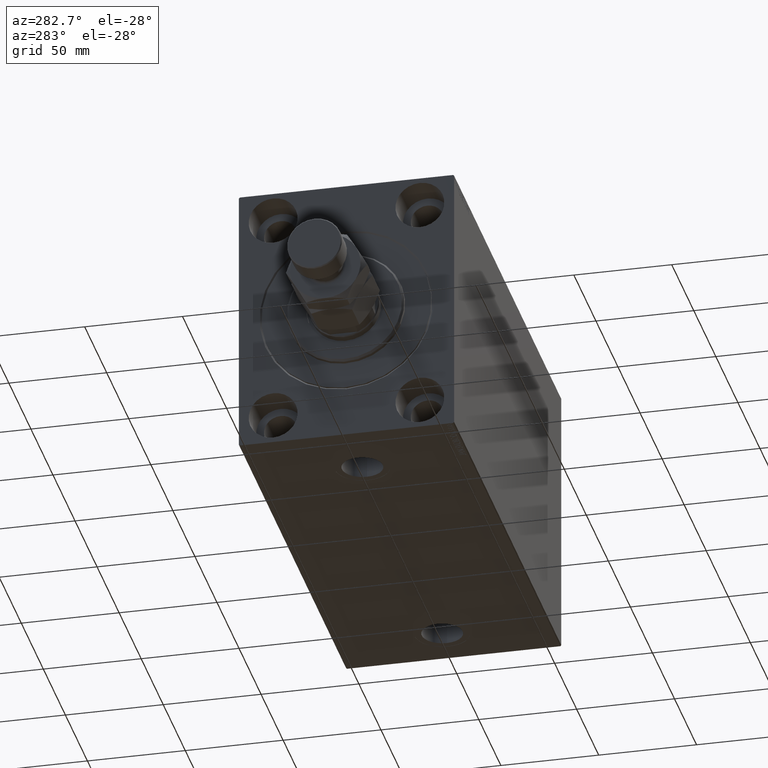
[diagram: clean part render]
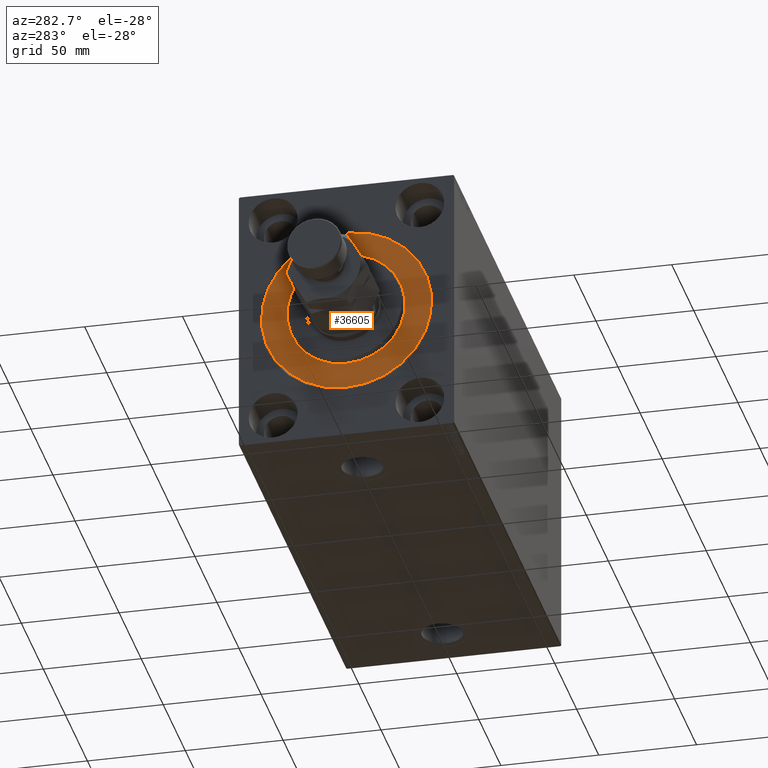
[diagram: same view with one face highlighted and labeled with its STEP entity id]
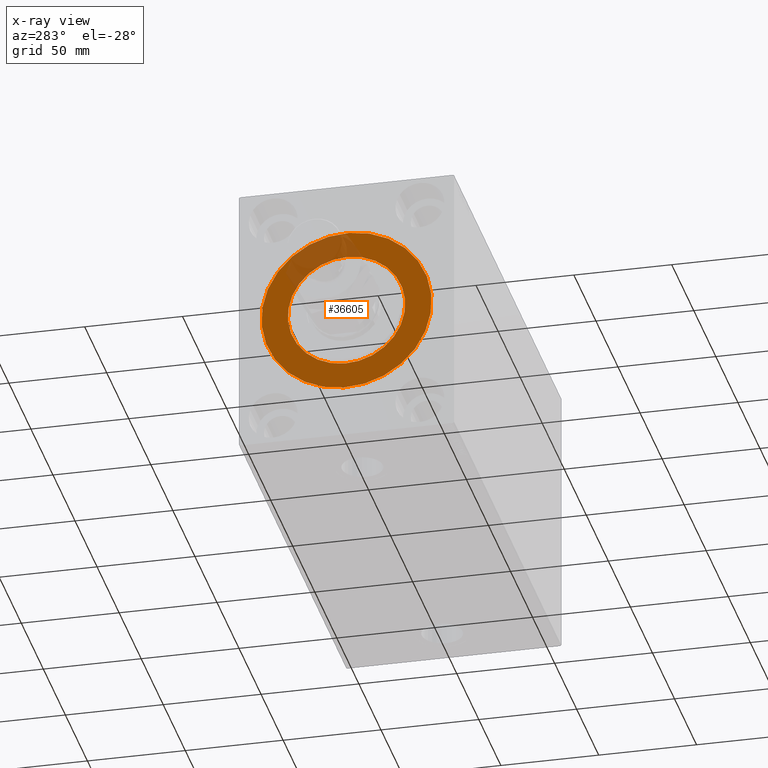
[diagram: x-ray of the same camera — body ghosted, the highlighted face saturated]
A machine part, auxiliary view. The second image highlights one B-rep face of the part: STEP entity #36605.
The next image is the same camera in x-ray: the body ghosted, the highlighted face saturated — about 16% of this face is hidden behind the body in this view.
In plain terms, the highlighted planar face has unit normal (1, 0, -0).
Its self-contained STEP definition (entity closure, byte-faithful):
#105 = EDGE_CURVE ( 'NONE', #3685, #33952, #40590, .T. ) ;
#287 = CARTESIAN_POINT ( 'NONE',  ( 0.000000000000000000, 0.000000000000000000, 0.000000000000000000 ) ) ;
#831 = CIRCLE ( 'NONE', #19856, 43.50000000000000000 ) ;
#3114 = VERTEX_POINT ( 'NONE', #4770 ) ;
#3145 = FACE_BOUND ( 'NONE', #37606, .T. ) ;
#3685 = VERTEX_POINT ( 'NONE', #11214 ) ;
#4309 = EDGE_CURVE ( 'NONE', #33952, #3685, #7295, .T. ) ;
#4770 = CARTESIAN_POINT ( 'NONE',  ( 0.000000000000000000, 0.000000000000000000, -43.50000000000000000 ) ) ;
#6504 = VERTEX_POINT ( 'NONE', #19639 ) ;
#7295 = CIRCLE ( 'NONE', #18690, 30.00000000000000000 ) ;
#9345 = DIRECTION ( 'NONE',  ( 0.000000000000000000, 0.000000000000000000, 1.000000000000000000 ) ) ;
#10213 = AXIS2_PLACEMENT_3D ( 'NONE', #24359, #35041, #9345 ) ;
#11053 = CARTESIAN_POINT ( 'NONE',  ( 0.000000000000000000, 0.000000000000000000, 0.000000000000000000 ) ) ;
#11214 = CARTESIAN_POINT ( 'NONE',  ( 0.000000000000000000, 0.000000000000000000, 30.00000000000000000 ) ) ;
#14081 = DIRECTION ( 'NONE',  ( -1.000000000000000000, 0.000000000000000000, 0.000000000000000000 ) ) ;
#15299 = DIRECTION ( 'NONE',  ( 0.000000000000000000, 0.000000000000000000, 1.000000000000000000 ) ) ;
#15846 = EDGE_CURVE ( 'NONE', #3114, #6504, #29940, .T. ) ;
#17677 = FACE_OUTER_BOUND ( 'NONE', #32605, .T. ) ;
#18642 = DIRECTION ( 'NONE',  ( -1.000000000000000000, 0.000000000000000000, 0.000000000000000000 ) ) ;
#18690 = AXIS2_PLACEMENT_3D ( 'NONE', #24958, #42541, #21380 ) ;
#19379 = AXIS2_PLACEMENT_3D ( 'NONE', #11053, #43417, #29616 ) ;
#19639 = CARTESIAN_POINT ( 'NONE',  ( 0.000000000000000000, 5.327213576290986044E-15, 43.50000000000000000 ) ) ;
#19856 = AXIS2_PLACEMENT_3D ( 'NONE', #287, #18642, #15299 ) ;
#21380 = DIRECTION ( 'NONE',  ( 0.000000000000000000, 0.000000000000000000, -1.000000000000000000 ) ) ;
#21686 = CARTESIAN_POINT ( 'NONE',  ( 0.000000000000000000, 0.000000000000000000, 0.000000000000000000 ) ) ;
#24359 = CARTESIAN_POINT ( 'NONE',  ( 0.000000000000000000, 0.000000000000000000, 0.000000000000000000 ) ) ;
#24528 = ORIENTED_EDGE ( 'NONE', *, *, #105, .F. ) ;
#24958 = CARTESIAN_POINT ( 'NONE',  ( 0.000000000000000000, 0.000000000000000000, 0.000000000000000000 ) ) ;
#25269 = DIRECTION ( 'NONE',  ( 0.000000000000000000, 0.000000000000000000, 1.000000000000000000 ) ) ;
#29616 = DIRECTION ( 'NONE',  ( 0.000000000000000000, 0.000000000000000000, -1.000000000000000000 ) ) ;
#29940 = CIRCLE ( 'NONE', #10213, 43.50000000000000000 ) ;
#32162 = PLANE ( 'NONE',  #43331 ) ;
#32605 = EDGE_LOOP ( 'NONE', ( #39395, #43715 ) ) ;
#33952 = VERTEX_POINT ( 'NONE', #38352 ) ;
#35041 = DIRECTION ( 'NONE',  ( -1.000000000000000000, 0.000000000000000000, 0.000000000000000000 ) ) ;
#36605 = ADVANCED_FACE ( 'NONE', ( #3145, #17677 ), #32162, .F. ) ;
#37606 = EDGE_LOOP ( 'NONE', ( #24528, #41065 ) ) ;
#38352 = CARTESIAN_POINT ( 'NONE',  ( 0.000000000000000000, 3.673940397442059178E-15, -30.00000000000000000 ) ) ;
#38372 = EDGE_CURVE ( 'NONE', #6504, #3114, #831, .T. ) ;
#39395 = ORIENTED_EDGE ( 'NONE', *, *, #15846, .F. ) ;
#40590 = CIRCLE ( 'NONE', #19379, 30.00000000000000000 ) ;
#41065 = ORIENTED_EDGE ( 'NONE', *, *, #4309, .F. ) ;
#42541 = DIRECTION ( 'NONE',  ( 1.000000000000000000, -0.000000000000000000, 0.000000000000000000 ) ) ;
#43331 = AXIS2_PLACEMENT_3D ( 'NONE', #21686, #14081, #25269 ) ;
#43417 = DIRECTION ( 'NONE',  ( 1.000000000000000000, -0.000000000000000000, 0.000000000000000000 ) ) ;
#43715 = ORIENTED_EDGE ( 'NONE', *, *, #38372, .F. ) ;